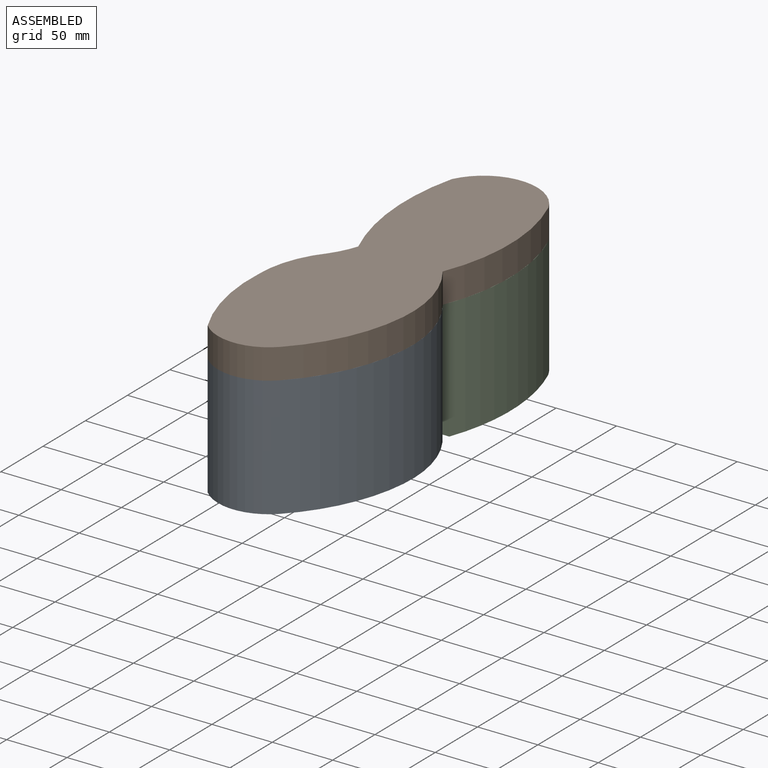
[diagram: assembled view]
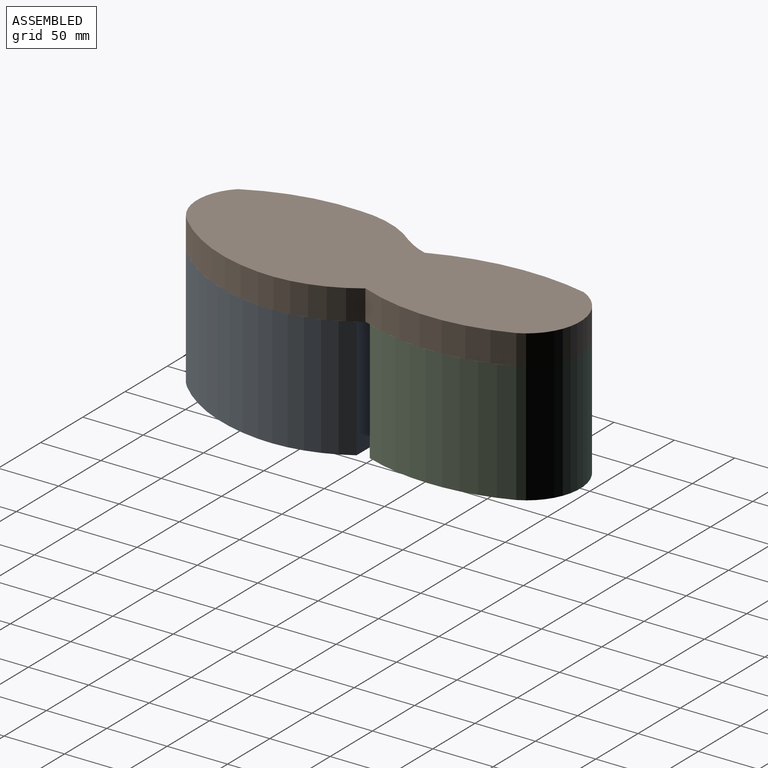
[diagram: assembled view, second angle]
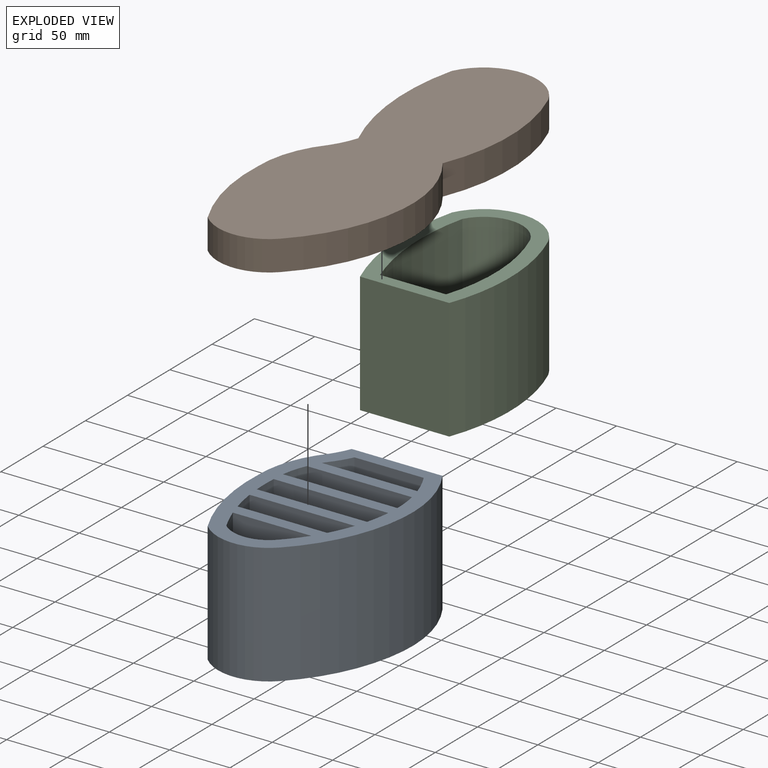
[diagram: exploded view]
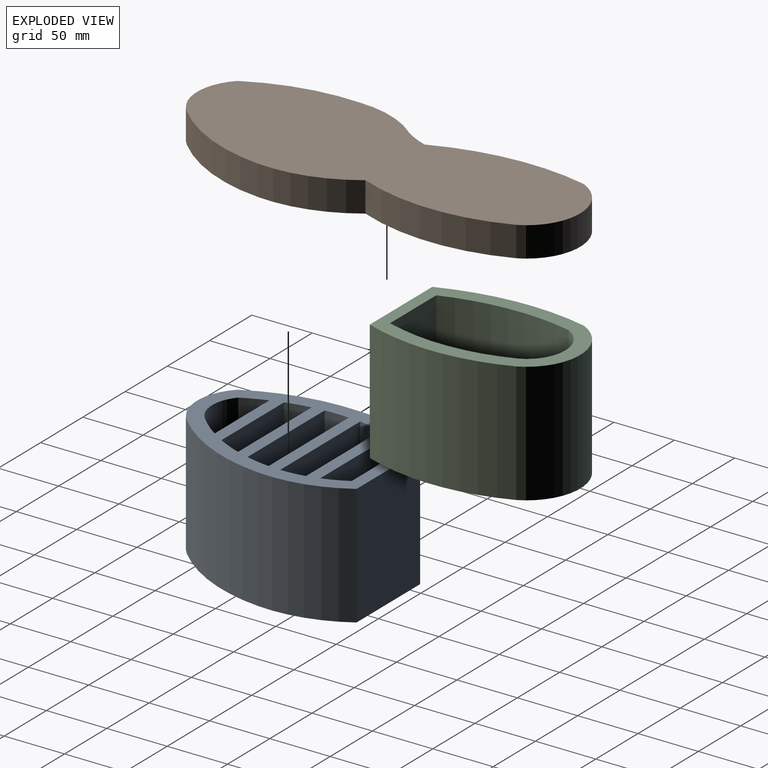
[diagram: exploded view, second angle]
ASSEMBLY  parts=3 mates=2
PART A: 30 faces, bbox 120.8x170x100 mm
  f0: cylinder r=130.7mm len=100mm, axis (0,0,1), area 2424.8mm2, adj f1,f27,f28,f29
  f1: cylinder r=29.75mm len=100mm, axis (0,0,1), area 4526.5mm2, adj f0,f2,f28,f29
  f2: cylinder r=152.5mm len=100mm, axis (0,0,1), area 2165.7mm2, adj f1,f27,f28,f29
  f3: plane 100x74.18mm, normal (0,-1,0), area 7417.5mm2, adj f4,f22,f28,f29
  f4: cylinder r=152.5mm len=100mm, axis (0,0,1), area 2041.9mm2, adj f3,f5,f28,f29
  f5: plane 100x87.19mm, normal (0,1,0), area 8719.2mm2, adj f4,f22,f28,f29
  f6: plane 100x94.8mm, normal (0,-1,0), area 9479.9mm2, adj f7,f23,f28,f29
  f7: cylinder r=73.12mm len=100mm, axis (0,0,1), area 2088.1mm2, adj f6,f8,f28,f29
  f8: plane 100x87.11mm, normal (0,1,0), area 8710.6mm2, adj f7,f23,f28,f29
  f9: plane 100x94.92mm, normal (0,1,0), area 9491.6mm2, adj f10,f24,f28,f29
  f10: cylinder r=130.7mm len=100mm, axis (0,0,1), area 2034.9mm2, adj f9,f11,f28,f29
  f11: plane 100x91.26mm, normal (0,-1,0), area 9126mm2, adj f10,f24,f28,f29
  f12: plane 100x57.35mm, normal (0,1,0), area 5735.5mm2, adj f13,f25,f28,f29
  f13: cylinder r=99.5mm len=100mm, axis (0,0,1), area 2186.7mm2, adj f12,f14,f28,f29
  f14: plane 100x79.08mm, normal (0,-1,0), area 7908.1mm2, adj f13,f15,f28,f29
  f15: cylinder r=73.12mm len=100mm, axis (0,0,1), area 917mm2, adj f14,f25,f28,f29
  f16: plane 100x75.15mm, normal (0,-1,0), area 7515.3mm2, adj f17,f26,f28,f29
  f17: cylinder r=75mm len=100mm, axis (0,0,1), area 1712.1mm2, adj f16,f18,f28,f29
  f18: cylinder r=85.62mm len=100mm, axis (0,0,1), area 5972.7mm2, adj f17,f19,f28,f29
  f19: cylinder r=165mm len=100mm, axis (0,0,1), area 9069.8mm2, adj f18,f20,f28,f29
  f20: cylinder r=42.25mm len=100mm, axis (0,0,1), area 6672mm2, adj f19,f21,f28,f29
  f21: cylinder r=143.2mm len=100mm, axis (0,0,1), area 9851.8mm2, adj f20,f26,f28,f29
  f22: cylinder r=130.7mm len=100mm, axis (0,0,1), area 2194.8mm2, adj f3,f5,f28,f29
  f23: cylinder r=99.5mm len=100mm, axis (0,0,1), area 2012.8mm2, adj f6,f8,f28,f29
  f24: cylinder r=152.5mm len=100mm, axis (0,0,1), area 2001.4mm2, adj f9,f11,f28,f29
  f25: cylinder r=87.5mm len=100mm, axis (0,0,1), area 1473.6mm2, adj f12,f15,f28,f29
  f26: cylinder r=112mm len=100mm, axis (0,0,1), area 7325.6mm2, adj f16,f21,f28,f29
  f27: plane 100x64.93mm, normal (0,1,0), area 6493.4mm2, adj f0,f2,f28,f29
  f28: plane 170x120.78mm, normal (0,0,-1), area 8732.7mm2, adj f0,f1,f2,f3,f4,f5,f6,f7
  f29: plane 170x120.78mm, normal (0,0,1), area 8732.7mm2, adj f0,f1,f2,f3,f4,f5,f6,f7
PART B: 11 faces, bbox 120.8x325x25 mm
  f0: cylinder r=42.25mm len=60mm, axis (0,0,-1), area 1668mm2, adj f1,f8,f9,f10
  f1: cylinder r=165mm len=87.5mm, axis (0,0,-1), area 2267.5mm2, adj f0,f2,f9,f10
  f2: cylinder r=85.62mm len=55mm, axis (0,0,-1), area 1493.2mm2, adj f1,f3,f9,f10
  f3: cylinder r=75mm len=25mm, axis (0,0,-1), area 561.1mm2, adj f2,f4,f9,f10
  f4: cylinder r=200mm len=125mm, axis (0,0,-1), area 3188.7mm2, adj f3,f5,f9,f10
  f5: cylinder r=44.5mm len=80mm, axis (0,0,-1), area 2485.8mm2, adj f4,f6,f9,f10
  f6: cylinder r=165mm len=125mm, axis (0,0,-1), area 3205mm2, adj f5,f7,f9,f10
  f7: cylinder r=112mm len=75mm, axis (0,0,-1), area 1981.6mm2, adj f6,f8,f9,f10
  f8: cylinder r=143.2mm len=87.5mm, axis (0,0,-1), area 2462.9mm2, adj f0,f7,f9,f10
  f9: plane 325x120.78mm, normal (0,0,1), area 29744.8mm2, adj f0,f1,f2,f3,f4,f5,f6,f7
  f10: plane 325x120.78mm, normal (0,0,-1), area 29744.8mm2, adj f0,f1,f2,f3,f4,f5,f6,f7
PART C: 10 faces, bbox 98x145x100 mm
  f0: plane 100x54.62mm, normal (0,-1,0), area 5462.1mm2, adj f1,f7,f8,f9
  f1: cylinder r=187.5mm len=105.64mm, axis (0,0,1), area 10725.7mm2, adj f0,f2,f8,f9
  f2: cylinder r=32mm len=100mm, axis (0,0,1), area 6986mm2, adj f1,f7,f8,f9
  f3: cylinder r=200mm len=120mm, axis (0,0,1), area 12215.4mm2, adj f4,f6,f8,f9
  f4: plane 100x73.98mm, normal (0,1,0), area 7397.9mm2, adj f3,f5,f8,f9
  f5: cylinder r=165mm len=120mm, axis (0,0,1), area 12283.3mm2, adj f4,f6,f8,f9
  f6: cylinder r=44.5mm len=100mm, axis (0,0,1), area 9943.1mm2, adj f3,f5,f8,f9
  f7: cylinder r=152.5mm len=104.86mm, axis (0,0,1), area 10711.5mm2, adj f0,f2,f8,f9
  f8: plane 145x97.98mm, normal (0,0,-1), area 4572.3mm2, adj f0,f1,f2,f3,f4,f5,f6,f7
  f9: plane 145x97.98mm, normal (0,0,1), area 4572.3mm2, adj f0,f1,f2,f3,f4,f5,f6,f7
PLACE A rot(axis=(-1,0,0),180deg) t=(-0.6,16.77,-100)mm
PLACE B rot(axis=(1,0,0),180deg) t=(-0.6,16.77,25)mm
PLACE C rot(axis=(-1,0,0),180deg) t=(-0.6,16.77,-100)mm
MATE fastened C.f8 <-> B.f9  axis (0,0,1) through (-40.6,141.77,0)mm
MATE fastened A.f28 <-> B.f9  axis (0,0,-1) through (-41.5,-145.73,0)mm
